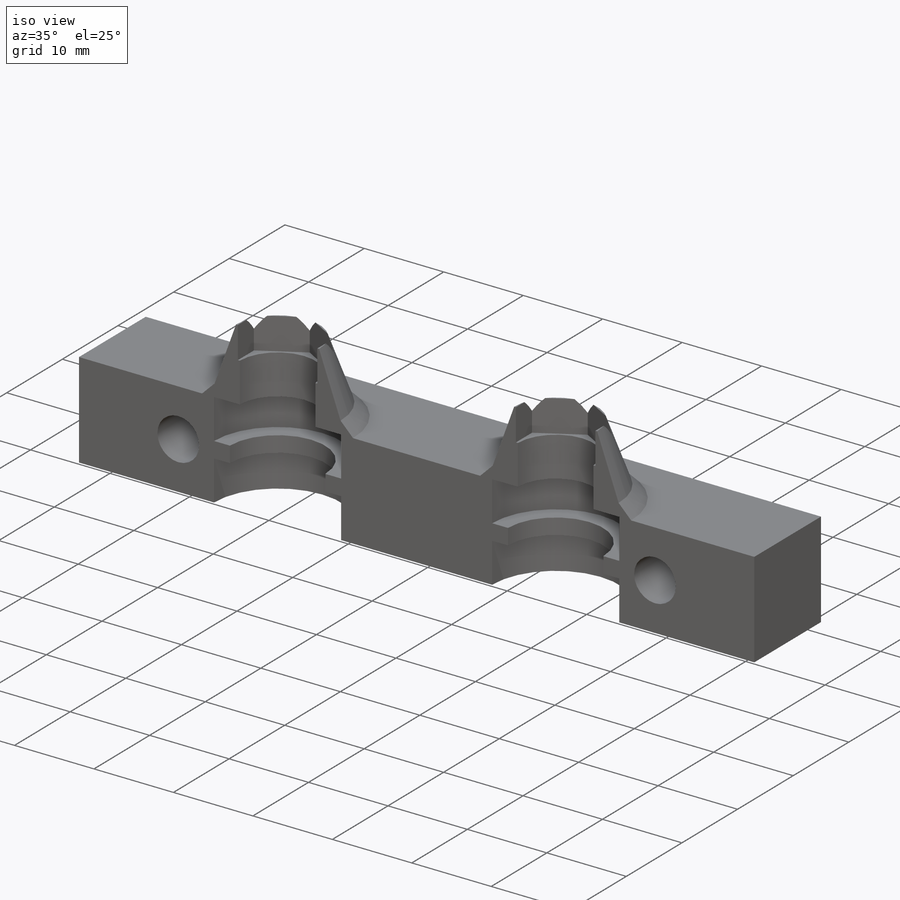
[diagram: iso view]
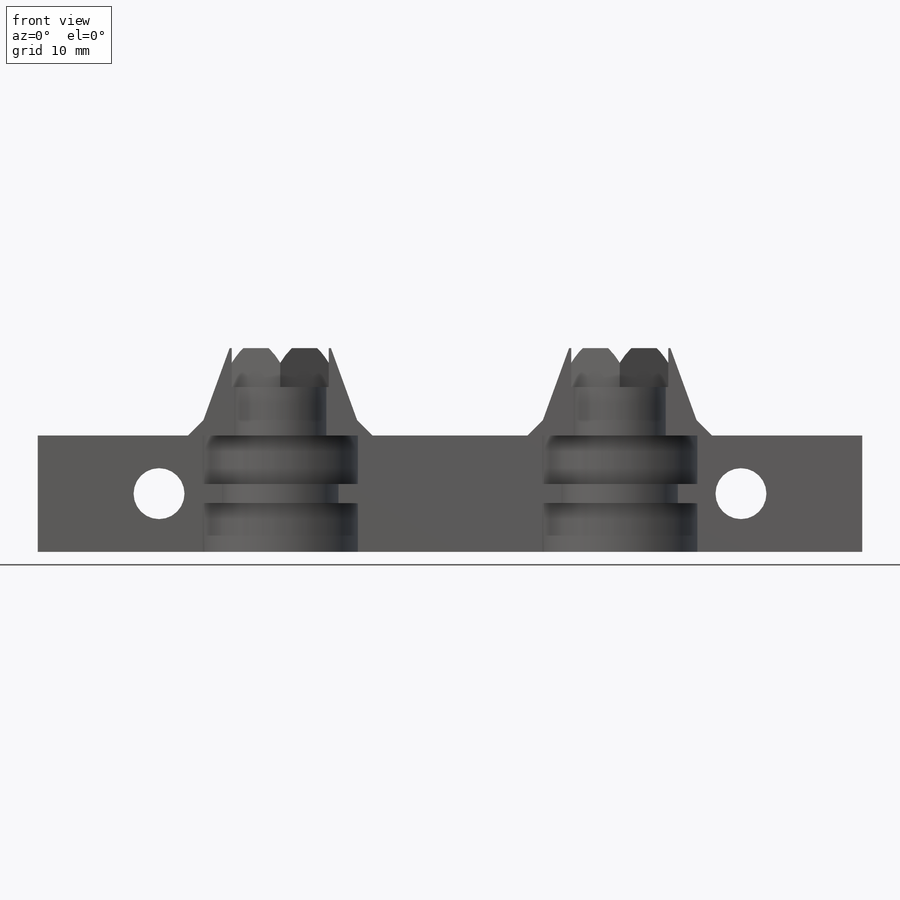
[diagram: front view]
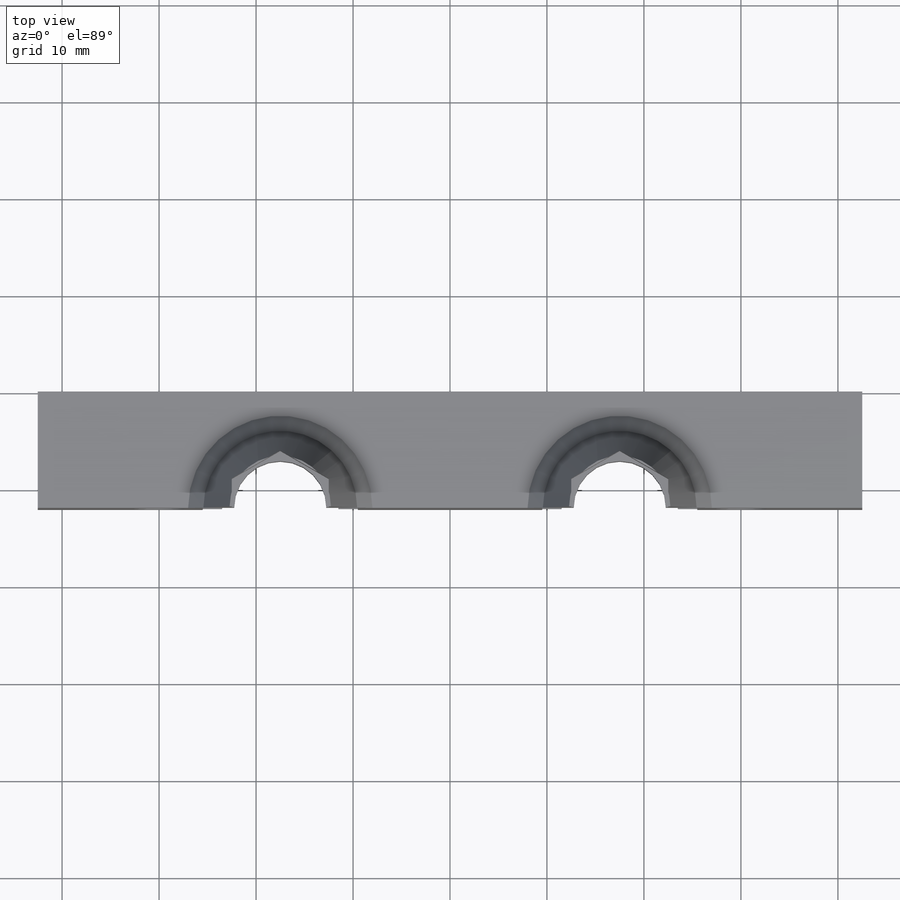
[diagram: top view]
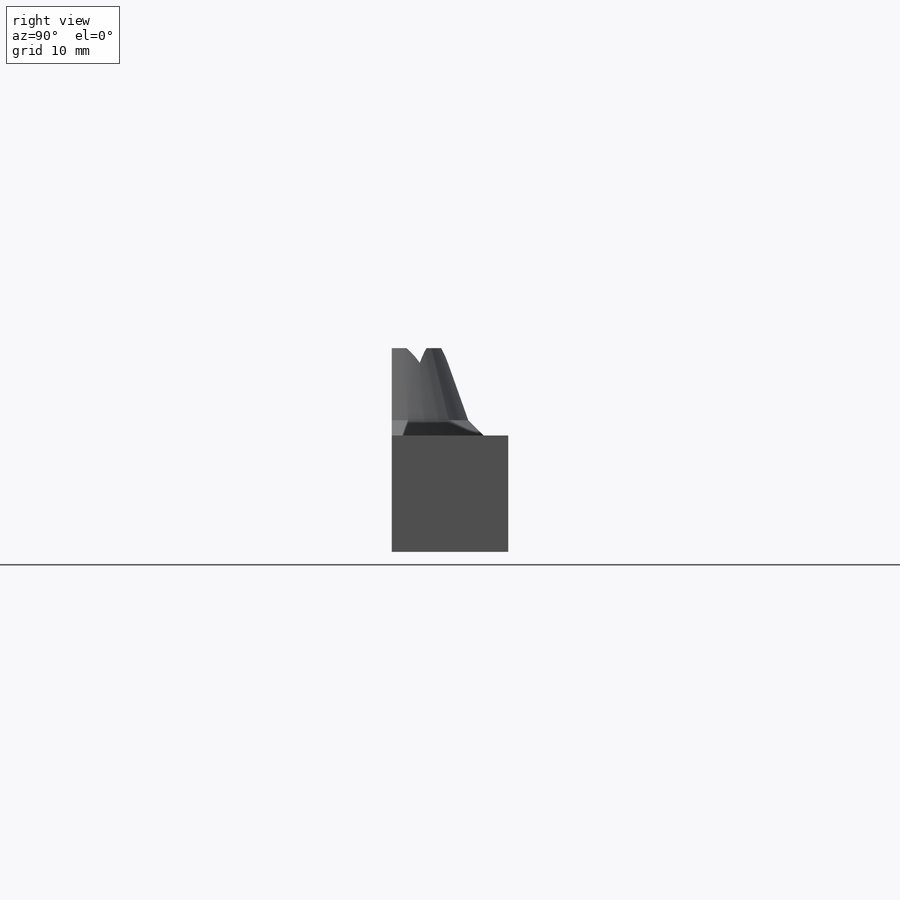
[diagram: right view]
SOLIDWORKS PART (.sldprt)
format: sldprt  version: not decoded by parser v0  size: 319,488 bytes
history: native  units: mm
features: sketch x9, cut_extrude x7, extrude x2, chamfer x2, material x1 (+13 scaffold rows collapsed)
feature tree (34):
  scaffold x13  (default folders/planes/origin — collapsed)
  material  "Material <not specified>"
  sketch  "Sketch1"  dims[D1=85.0mm D2=12.0mm]
  extrude  "Boss-Extrude1"  Depth=12mm
  sketch  "Sketch2"  dims[D1=16.0mm D2=16.0mm D3=25.0mm D4=25.0mm]
  cut_extrude  "Cut-Extrude2"  Depth=5mm
  sketch  "Sketch3"  dims[D1=16.0mm D2=16.0mm D3=25.0mm D4=25.0mm]
  cut_extrude  "Cut-Extrude3"  Depth=5mm
  sketch  "Sketch4"  dims[D1=12.0mm D2=12.0mm]
  cut_extrude  "Cut-Extrude4"  Depth=5mm
  sketch  "Sketch5"  dims[D3=5.25mm D4=5.25mm D1=12.5mm D2=12.5mm D5=60.0mm]
  cut_extrude  "Cut-Extrude6"  [1 undecoded]
  sketch  "Sketch7"  dims[D1=17.0mm D2=17.0mm]
  extrude  "Boss-Extrude3"  Depth=9mm
  chamfer  "Chamfer1"  Distance=1mm Angle=45deg
  chamfer  "Chamfer2"  Distance=1mm Angle=45deg
  sketch  "Sketch10"  dims[D1=10.0mm D2=10.0mm]
  cut_extrude  "Cut-Extrude9"  Depth=4mm
  sketch  "Sketch11"  dims[D1=9.5mm D2=9.5mm]
  cut_extrude  "Cut-Extrude10"  [1 undecoded]
  sketch  "Sketch12"
  cut_extrude  "Cut-Extrude11"  [1 undecoded]
decode coverage: 16 of 20 modeling features carry decoded parameters
note: 3 parameter values undecoded
summary: no parameter record found for 3 features
note: suppression state not decoded; provenance and decode notes live in map.json
